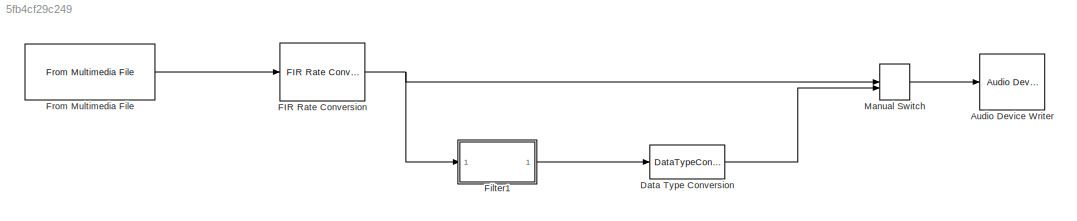
MODEL slx_5fb4cf29c249
KIND model
CONFIG AbsTol = auto
CONFIG EnableMultiTasking = off
CONFIG FixedStep = auto
CONFIG MaxStep = auto
CONFIG MinStep = auto
CONFIG RelTol = 1e-3
CONFIG SampleTimeConstraint = Unconstrained
CONFIG Solver = VariableStepAuto
CONFIG SolverName = VariableStepAuto
CONFIG StartTime = 0.0
CONFIG StopTime = 10.0
BLOCK [Reference] Audio Device Writer  REF=dspsnks4/Audio Device
Writer
  Ports = [1]
  SourceBlock = dspsnks4/Audio Device\nWriter
  SourceProductBaseCode = DS
  SourceProductName = DSP System Toolbox
  SourceType = Audio Device Writer
BLOCK [DataTypeConversion] Data Type Conversion
  RndMeth = Floor
  SaturateOnIntegerOverflow = off
BLOCK [Reference] FIR Rate Conversion  REF=dspmlti4/FIR Rate
Conversion
  Ports = [1, 1]
  SourceBlock = dspmlti4/FIR Rate\nConversion
  SourceProductBaseCode = DS
  SourceProductName = DSP System Toolbox
  SourceType = FIR Rate Conversion
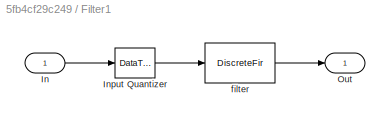
BLOCK [SubSystem] Filter1
  Ports = [1, 1]
  RequestExecContextInheritance = off
  Tag = BlockMethodSubSystem
BLOCK [Inport] Filter1/In
  IconDisplay = Port number
BLOCK [DataTypeConversion] Filter1/Input Quantizer
  OutDataTypeStr = fixdt(1,24,23)
  RndMeth = Round
BLOCK [Outport] Filter1/Out
  IconDisplay = Port number
BLOCK [DiscreteFir] Filter1/filter
  AccumDataTypeStr = fixdt(true,34,31)
  CoefDataTypeStr = fixdt(true,16,16)
  Coefficients = [-0.00199770033737375506 -0.00505222465816406504 -0.00833204912297768989 -0.0105388507214209323 -0.00928605369156701096 -0.00465626636433711175 0.00212771748052052517 0.00721999616778093607 0.00780919715731917367 0.00275559566900016517 -0.0048457250469423974 -0.0102132088672959413 -0.00881394373220145168 -0.000690352173205894051 0.00960397765611907019 0.0146313292123976882 0.00973684132692751066 -...<+1065ch>
  InputPortMap = u0
  InputProcessing = Columns as channels (frame based)
  OutDataTypeStr = fixdt(true,32,30)
  OutputPortMap = o0
  Ports = [1, 1]
  ProductDataTypeStr = fixdt(true,31,31)
  RndMeth = Convergent
BLOCK [Reference] From Multimedia File  REF=dspvision/From Multimedia File
  Ports = [0, 1]
  SourceBlock = dspvision/From Multimedia File
  SourceProductBaseCode = VP
  SourceProductName = Computer Vision System Toolbox
  SourceType = From Multimedia File
BLOCK [ManualSwitch] Manual Switch
  CurrentSetting = 0
LINE Data Type Conversion:1 -> Manual Switch:2
NET FIR Rate Conversion:1 -> Filter1:1, Manual Switch:1
LINE Filter1/In:1 -> Filter1/Input Quantizer:1
LINE Filter1/Input Quantizer:1 -> Filter1/filter:1
LINE Filter1/filter:1 -> Filter1/Out:1
LINE Filter1:1 -> Data Type Conversion:1
LINE From Multimedia File:1 -> FIR Rate Conversion:1
LINE Manual Switch:1 -> Audio Device Writer:1
note: NET lines group one-source signal fan-out (src -> all destinations, sorted); 1:1 wires keep LINE
